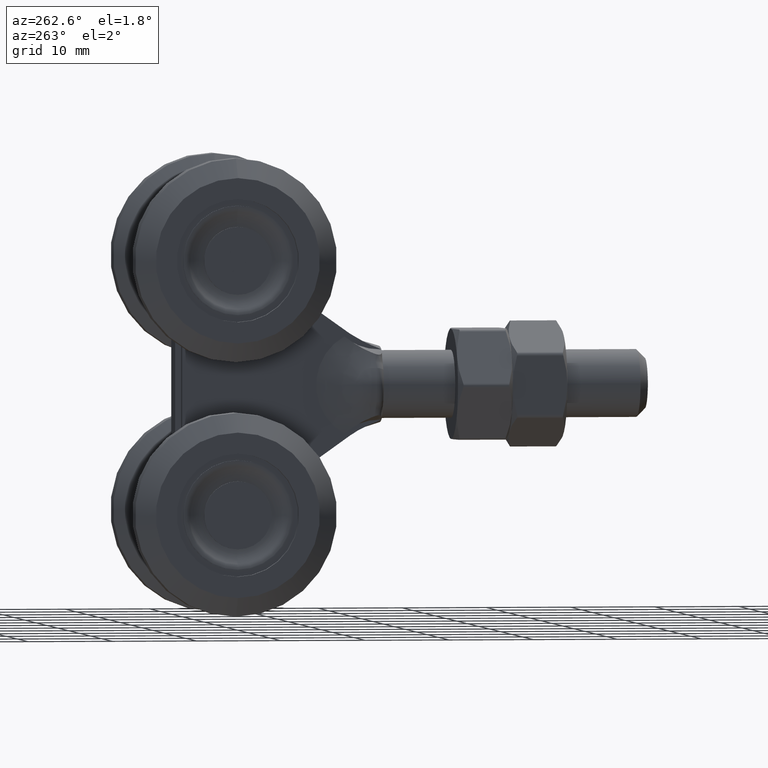
[diagram: clean part render]
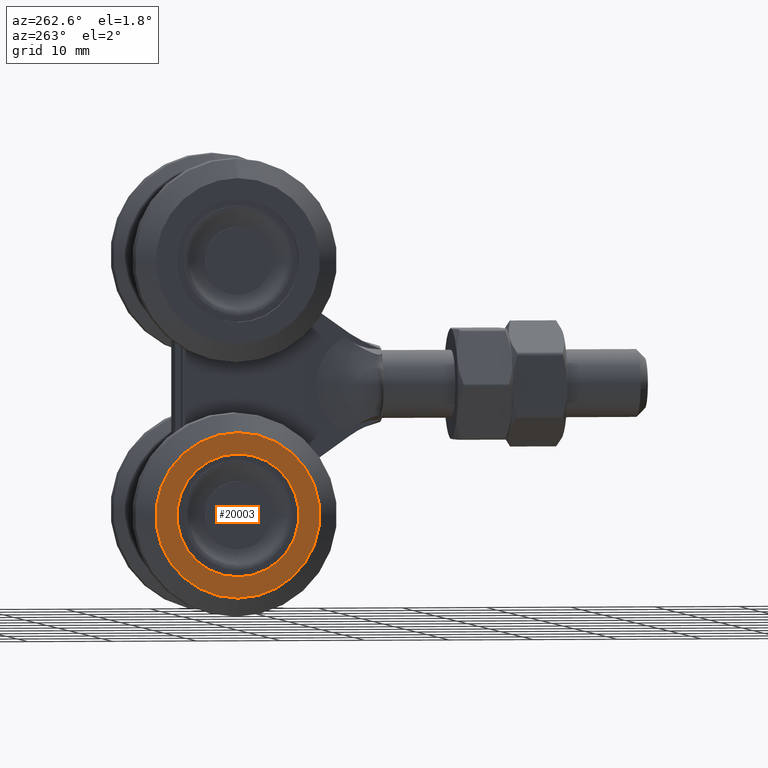
[diagram: same view with one face highlighted and labeled with its STEP entity id]
A machine part, auxiliary view. The second image highlights one B-rep face of the part: STEP entity #20003.
In plain terms, the highlighted planar face has unit normal (1, 0, 0).
Its self-contained STEP definition (entity closure, byte-faithful):
#1397 = AXIS2_PLACEMENT_3D ( 'NONE', #14184, #27288, #20617 ) ;
#1504 = EDGE_CURVE ( 'NONE', #3948, #3948, #26809, .T. ) ;
#3490 = FACE_BOUND ( 'NONE', #18036, .T. ) ;
#3948 = VERTEX_POINT ( 'NONE', #3994 ) ;
#3994 = CARTESIAN_POINT ( 'NONE',  ( -12.99999999999999822, 18.99999999999999645, -22.25000000000000000 ) ) ;
#4220 = FACE_OUTER_BOUND ( 'NONE', #26082, .T. ) ;
#5400 = EDGE_CURVE ( 'NONE', #16648, #16648, #23904, .T. ) ;
#7394 = ORIENTED_EDGE ( 'NONE', *, *, #1504, .T. ) ;
#7803 = DIRECTION ( 'NONE',  ( 1.000000000000000000, 0.000000000000000000, 0.000000000000000000 ) ) ;
#10835 = AXIS2_PLACEMENT_3D ( 'NONE', #11067, #26838, #13335 ) ;
#11067 = CARTESIAN_POINT ( 'NONE',  ( -12.99999999999999822, 18.99999999999999645, -15.00000000000000000 ) ) ;
#13232 = CARTESIAN_POINT ( 'NONE',  ( -12.99999999999999822, 18.99999999999999645, -24.74999999999999645 ) ) ;
#13335 = DIRECTION ( 'NONE',  ( 0.000000000000000000, 0.000000000000000000, -1.000000000000000000 ) ) ;
#14184 = CARTESIAN_POINT ( 'NONE',  ( -12.99999999999999822, 18.99999999999999645, -15.00000000000000000 ) ) ;
#14515 = PLANE ( 'NONE',  #19491 ) ;
#15597 = ORIENTED_EDGE ( 'NONE', *, *, #5400, .F. ) ;
#16509 = DIRECTION ( 'NONE',  ( 0.000000000000000000, 0.000000000000000000, -1.000000000000000000 ) ) ;
#16648 = VERTEX_POINT ( 'NONE', #13232 ) ;
#18036 = EDGE_LOOP ( 'NONE', ( #7394 ) ) ;
#19491 = AXIS2_PLACEMENT_3D ( 'NONE', #25933, #7803, #16509 ) ;
#20003 = ADVANCED_FACE ( 'NONE', ( #4220, #3490 ), #14515, .F. ) ;
#20617 = DIRECTION ( 'NONE',  ( 0.000000000000000000, 0.000000000000000000, -1.000000000000000000 ) ) ;
#23904 = CIRCLE ( 'NONE', #1397, 9.749999999999998224 ) ;
#25933 = CARTESIAN_POINT ( 'NONE',  ( -12.99999999999999822, 28.74999999999999289, -15.00000000000000000 ) ) ;
#26082 = EDGE_LOOP ( 'NONE', ( #15597 ) ) ;
#26809 = CIRCLE ( 'NONE', #10835, 7.249999999999999112 ) ;
#26838 = DIRECTION ( 'NONE',  ( 1.000000000000000000, -0.000000000000000000, -0.000000000000000000 ) ) ;
#27288 = DIRECTION ( 'NONE',  ( 1.000000000000000000, -0.000000000000000000, -0.000000000000000000 ) ) ;